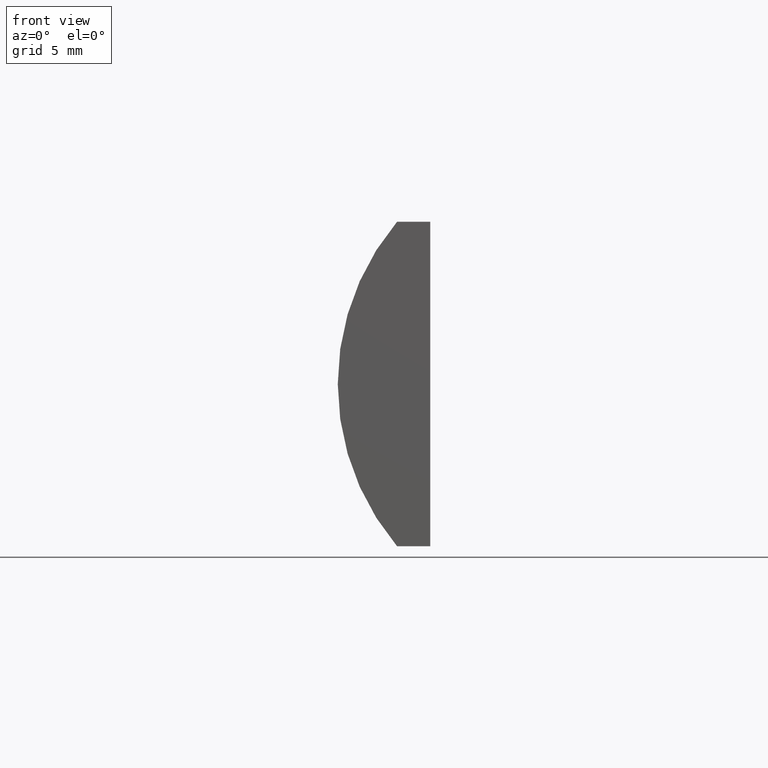
[diagram: clean part render]
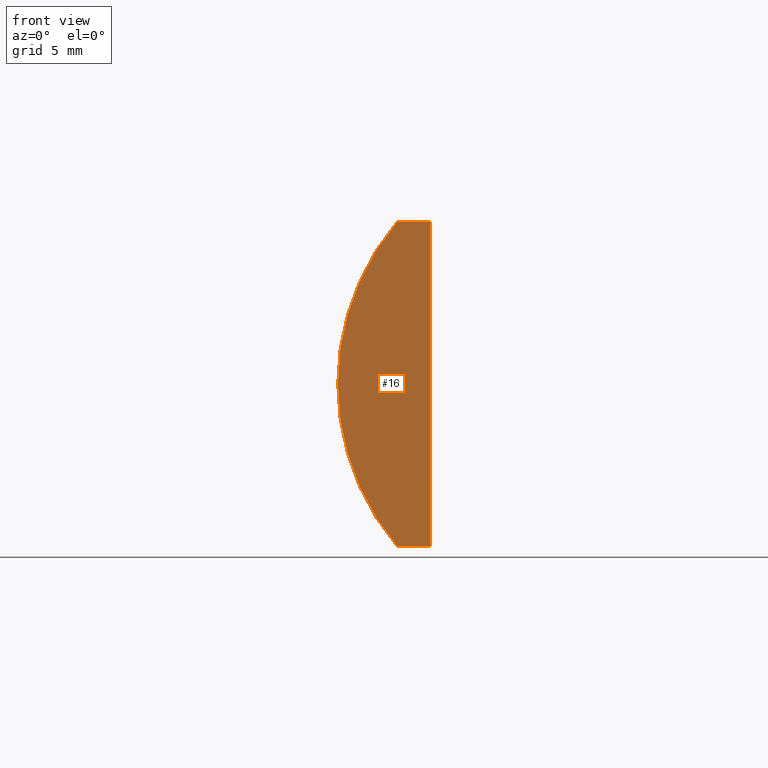
[diagram: same view with one face highlighted and labeled with its STEP entity id]
A machine part, front view. The second image highlights one B-rep face of the part: STEP entity #16.
In plain terms, the highlighted planar face has unit normal (0, 1, 0).
Its self-contained STEP definition (entity closure, byte-faithful):
#2 = DIRECTION ( 'NONE',  ( 0.0000000000000000000, 0.0000000000000000000, 1.000000000000000000 ) ) ;
#16 = ADVANCED_FACE ( 'NONE', ( #201 ), #37, .F. ) ;
#26 = VECTOR ( 'NONE', #63, 1000.000000000000000 ) ;
#30 = ORIENTED_EDGE ( 'NONE', *, *, #85, .F. ) ;
#34 = EDGE_CURVE ( 'NONE', #100, #126, #103, .T. ) ;
#37 = PLANE ( 'NONE',  #53 ) ;
#38 = AXIS2_PLACEMENT_3D ( 'NONE', #160, #153, #2 ) ;
#50 = VERTEX_POINT ( 'NONE', #158 ) ;
#52 = DIRECTION ( 'NONE',  ( 0.0000000000000000000, 1.000000000000000000, 0.0000000000000000000 ) ) ;
#53 = AXIS2_PLACEMENT_3D ( 'NONE', #73, #52, #164 ) ;
#57 = CARTESIAN_POINT ( 'NONE',  ( -5.454795665148737700, 0.0000000000000000000, -10.00000000000000000 ) ) ;
#60 = EDGE_CURVE ( 'NONE', #169, #100, #138, .T. ) ;
#63 = DIRECTION ( 'NONE',  ( -3.035766082959412400E-016, -0.0000000000000000000, -1.000000000000000000 ) ) ;
#67 = ORIENTED_EDGE ( 'NONE', *, *, #34, .F. ) ;
#73 = CARTESIAN_POINT ( 'NONE',  ( 4.355204334851265500, 0.0000000000000000000, 4.286263797015675000E-017 ) ) ;
#80 = CARTESIAN_POINT ( 'NONE',  ( -7.500600150716129700, 0.0000000000000000000, -10.00000000000000000 ) ) ;
#84 = VECTOR ( 'NONE', #147, 1000.000000000000000 ) ;
#85 = EDGE_CURVE ( 'NONE', #126, #50, #87, .T. ) ;
#87 = CIRCLE ( 'NONE', #38, 15.51000000000000000 ) ;
#96 = CARTESIAN_POINT ( 'NONE',  ( -5.454795665148737700, 0.0000000000000000000, -10.00000000000000000 ) ) ;
#100 = VERTEX_POINT ( 'NONE', #57 ) ;
#103 = LINE ( 'NONE', #172, #84 ) ;
#118 = EDGE_CURVE ( 'NONE', #50, #169, #196, .T. ) ;
#126 = VERTEX_POINT ( 'NONE', #80 ) ;
#128 = VECTOR ( 'NONE', #141, 1000.000000000000000 ) ;
#138 = LINE ( 'NONE', #96, #26 ) ;
#141 = DIRECTION ( 'NONE',  ( 1.000000000000000000, 0.0000000000000000000, 0.0000000000000000000 ) ) ;
#146 = ORIENTED_EDGE ( 'NONE', *, *, #60, .F. ) ;
#147 = DIRECTION ( 'NONE',  ( -1.000000000000000000, -0.0000000000000000000, -0.0000000000000000000 ) ) ;
#153 = DIRECTION ( 'NONE',  ( 0.0000000000000000000, 1.000000000000000000, 0.0000000000000000000 ) ) ;
#158 = CARTESIAN_POINT ( 'NONE',  ( -7.500600150716129700, 0.0000000000000000000, 10.00000000000000000 ) ) ;
#160 = CARTESIAN_POINT ( 'NONE',  ( 4.355204334851265500, 0.0000000000000000000, 4.286263797015675000E-017 ) ) ;
#164 = DIRECTION ( 'NONE',  ( 0.0000000000000000000, -0.0000000000000000000, 1.000000000000000000 ) ) ;
#169 = VERTEX_POINT ( 'NONE', #174 ) ;
#172 = CARTESIAN_POINT ( 'NONE',  ( -7.500600150716129700, 0.0000000000000000000, -10.00000000000000000 ) ) ;
#174 = CARTESIAN_POINT ( 'NONE',  ( -5.454795665148731500, 0.0000000000000000000, 10.00000000000000000 ) ) ;
#188 = CARTESIAN_POINT ( 'NONE',  ( -7.500600150716129700, 0.0000000000000000000, 10.00000000000000000 ) ) ;
#190 = EDGE_LOOP ( 'NONE', ( #30, #67, #146, #199 ) ) ;
#196 = LINE ( 'NONE', #188, #128 ) ;
#199 = ORIENTED_EDGE ( 'NONE', *, *, #118, .F. ) ;
#201 = FACE_OUTER_BOUND ( 'NONE', #190, .T. ) ;